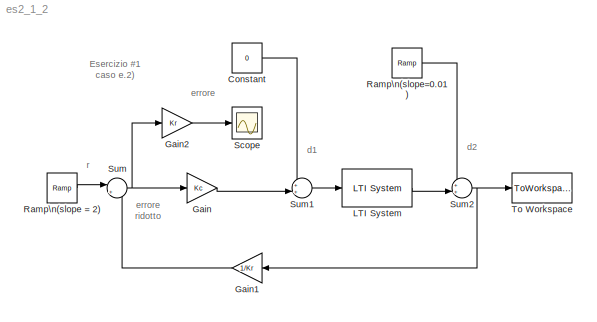
MODEL es2_1_2
KIND model
CONFIG AbsTol = auto
CONFIG FixedStep = auto
CONFIG MaxStep = auto
CONFIG RelTol = 1e-5
CONFIG Solver = ode45
CONFIG SolverMode = Auto
CONFIG StartTime = 0.0
CONFIG StopTime = 30.0
BLOCK [Constant] Constant
  Value = 0
BLOCK [Gain] Gain
  Gain = Kc
  SaturateOnIntegerOverflow = on
BLOCK [Gain] Gain1
  Gain = 1/Kr
  SaturateOnIntegerOverflow = on
BLOCK [Gain] Gain2
  Gain = Kr
  SaturateOnIntegerOverflow = on
BLOCK [Reference] LTI System  REF=cstblocks/LTI System
  IC = [0]
  Ports = [1, 1, 0, 0, 0]
  SourceBlock = cstblocks/LTI System
  SourceType = LTI Block
  sys = F
BLOCK [Reference] Ramp\n(slope = 2)  REF=simulink3/Sources/Ramp
  Ports = [0, 1, 0, 0, 0]
  SourceBlock = simulink3/Sources/Ramp
  SourceType = Ramp
  X0 = 0
  slope = 2
  start = 0
BLOCK [Reference] Ramp\n(slope=0.01)  REF=simulink3/Sources/Ramp
  Ports = [0, 1, 0, 0, 0]
  SourceBlock = simulink3/Sources/Ramp
  SourceType = Ramp
  X0 = 0
  slope = 0.01
  start = 0
BLOCK [Scope] Scope
  DataFormat = StructureWithTime
  Decimation = 1
  Floating = off
  Grid = on
  LimitMaxRows = on
  MaxRows = 5000
  NumInputPorts = 1
  Ports = [1, 0, 0, 0, 0]
  SampleInput = off
  SampleTime = 0
  SaveName = ScopeData
  SaveToWorkspace = off
  TickLabels = OneTimeTick
  TimeRange = auto
  YMax = 5
  YMin = -5
  ZoomMode = on
BLOCK [Sum] Sum
  IconShape = round
  Inputs = |+-
  Ports = [2, 1, 0, 0, 0]
  SaturateOnIntegerOverflow = on
BLOCK [Sum] Sum1
  IconShape = round
  Inputs = ++|
  Ports = [2, 1, 0, 0, 0]
  SaturateOnIntegerOverflow = on
BLOCK [Sum] Sum2
  IconShape = round
  Inputs = ++|
  Ports = [2, 1, 0, 0, 0]
  SaturateOnIntegerOverflow = on
BLOCK [ToWorkspace] To Workspace
  Buffer = inf
  Decimation = 1
  SampleTime = -1
  SaveFormat = Matrix
  VariableName = y
LINE Constant:1 -> Sum1:1
LINE Gain1:1 -> Sum:2
LINE Gain2:1 -> Scope:1
LINE Gain:1 -> Sum1:2
LINE LTI System:1 -> Sum2:2
LINE Ramp\n(slope = 2):1 -> Sum:1
LINE Ramp\n(slope=0.01):1 -> Sum2:1
LINE Sum1:1 -> LTI System:1
NET Sum2:1 -> Gain1:1, To Workspace:1
NET Sum:1 -> Gain2:1, Gain:1
note: NET lines group one-source signal fan-out (src -> all destinations, sorted); 1:1 wires keep LINE
